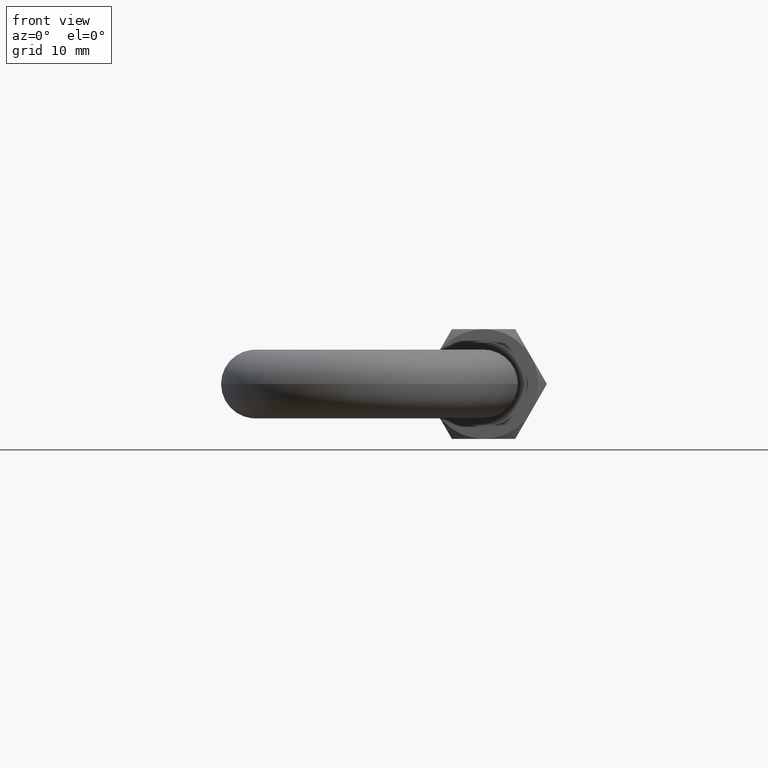
[diagram: clean part render]
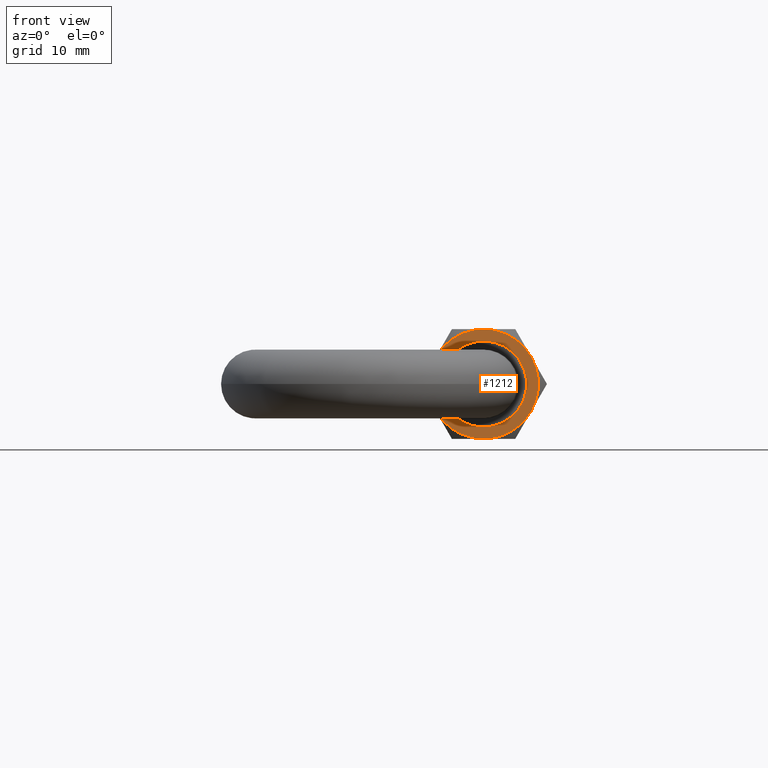
[diagram: same view with one face highlighted and labeled with its STEP entity id]
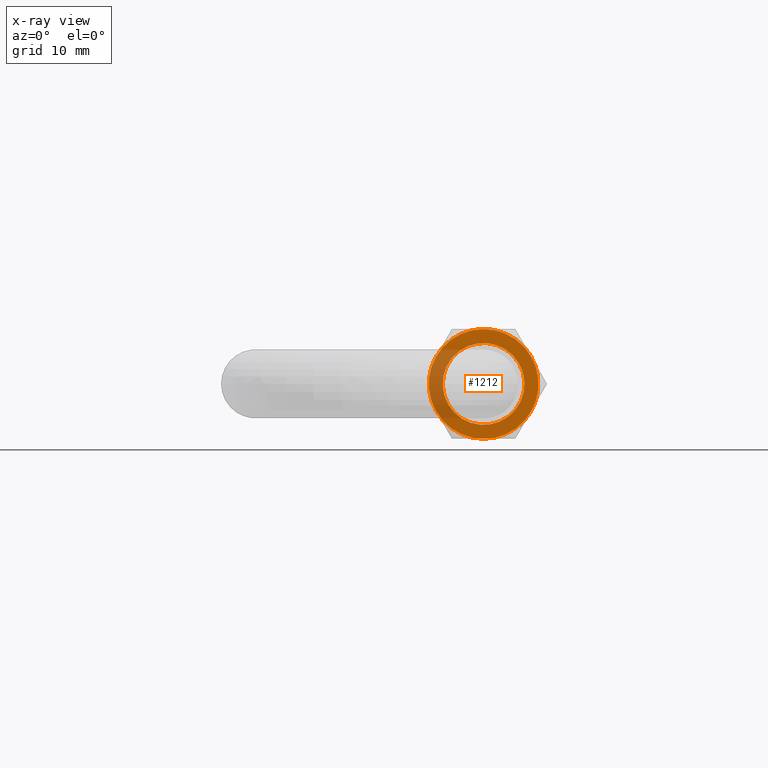
[diagram: x-ray of the same camera — body ghosted, the highlighted face saturated]
A machine part, front view. The second image highlights one B-rep face of the part: STEP entity #1212.
The next image is the same camera in x-ray: the body ghosted, the highlighted face saturated — about 26% of this face is hidden behind the body in this view.
In plain terms, the highlighted planar face has unit normal (0, 1, 0).
Its self-contained STEP definition (entity closure, byte-faithful):
#5 = CARTESIAN_POINT ( 'NONE',  ( 0.0000000000000000000, -12.00000000000000000, 6.375000000000000000 ) ) ;
#23 = DIRECTION ( 'NONE',  ( 0.0000000000000000000, 0.0000000000000000000, 1.000000000000000000 ) ) ;
#41 = CIRCLE ( 'NONE', #1018, 6.375000000000000000 ) ;
#47 = CARTESIAN_POINT ( 'NONE',  ( 0.0000000000000000000, -12.00000000000000000, -4.749999999999997300 ) ) ;
#53 = DIRECTION ( 'NONE',  ( 0.0000000000000000000, 1.000000000000000000, 0.0000000000000000000 ) ) ;
#73 = EDGE_LOOP ( 'NONE', ( #1292, #1361 ) ) ;
#106 = CARTESIAN_POINT ( 'NONE',  ( 0.0000000000000000000, -12.00000000000000000, 0.0000000000000000000 ) ) ;
#158 = CIRCLE ( 'NONE', #1933, 4.749999999999997300 ) ;
#161 = AXIS2_PLACEMENT_3D ( 'NONE', #1298, #1756, #516 ) ;
#178 = CIRCLE ( 'NONE', #342, 4.749999999999997300 ) ;
#188 = AXIS2_PLACEMENT_3D ( 'NONE', #1133, #53, #1140 ) ;
#191 = EDGE_CURVE ( 'NONE', #1755, #281, #341, .T. ) ;
#223 = CARTESIAN_POINT ( 'NONE',  ( 0.0000000000000000000, -12.00000000000000000, 0.0000000000000000000 ) ) ;
#281 = VERTEX_POINT ( 'NONE', #5 ) ;
#308 = ORIENTED_EDGE ( 'NONE', *, *, #962, .T. ) ;
#322 = DIRECTION ( 'NONE',  ( 8.881784197001252300E-016, 0.0000000000000000000, 1.000000000000000000 ) ) ;
#325 = VERTEX_POINT ( 'NONE', #1091 ) ;
#341 = CIRCLE ( 'NONE', #1088, 6.375000000000000000 ) ;
#342 = AXIS2_PLACEMENT_3D ( 'NONE', #943, #476, #23 ) ;
#360 = CIRCLE ( 'NONE', #1888, 6.375000000000000000 ) ;
#385 = DIRECTION ( 'NONE',  ( 0.0000000000000000000, 0.0000000000000000000, 1.000000000000000000 ) ) ;
#467 = CARTESIAN_POINT ( 'NONE',  ( 0.0000000000000000000, -12.00000000000000000, 0.0000000000000000000 ) ) ;
#476 = DIRECTION ( 'NONE',  ( 0.0000000000000000000, 1.000000000000000000, 0.0000000000000000000 ) ) ;
#490 = VERTEX_POINT ( 'NONE', #1299 ) ;
#516 = DIRECTION ( 'NONE',  ( 0.0000000000000000000, 0.0000000000000000000, -1.000000000000000000 ) ) ;
#518 = DIRECTION ( 'NONE',  ( 1.776356839400250500E-015, 0.0000000000000000000, 1.000000000000000000 ) ) ;
#646 = ORIENTED_EDGE ( 'NONE', *, *, #920, .T. ) ;
#649 = CARTESIAN_POINT ( 'NONE',  ( -5.520911949125795600, -12.00000000000000000, 3.187500000000000400 ) ) ;
#650 = DIRECTION ( 'NONE',  ( -0.0000000000000000000, -1.000000000000000000, -0.0000000000000000000 ) ) ;
#651 = ORIENTED_EDGE ( 'NONE', *, *, #191, .T. ) ;
#652 = PLANE ( 'NONE',  #188 ) ;
#737 = CIRCLE ( 'NONE', #984, 6.375000000000000000 ) ;
#744 = DIRECTION ( 'NONE',  ( 0.0000000000000000000, 0.0000000000000000000, 1.000000000000000000 ) ) ;
#747 = CARTESIAN_POINT ( 'NONE',  ( 5.520911949125796500, -12.00000000000000000, 3.187499999999998200 ) ) ;
#783 = EDGE_CURVE ( 'NONE', #1969, #490, #158, .T. ) ;
#788 = EDGE_LOOP ( 'NONE', ( #651, #308, #646, #1799, #843, #1372 ) ) ;
#791 = CARTESIAN_POINT ( 'NONE',  ( 0.0000000000000000000, -12.00000000000000000, 0.0000000000000000000 ) ) ;
#843 = ORIENTED_EDGE ( 'NONE', *, *, #1137, .T. ) ;
#855 = CIRCLE ( 'NONE', #910, 6.375000000000000000 ) ;
#888 = DIRECTION ( 'NONE',  ( -0.0000000000000000000, -1.000000000000000000, -0.0000000000000000000 ) ) ;
#910 = AXIS2_PLACEMENT_3D ( 'NONE', #1041, #888, #1530 ) ;
#920 = EDGE_CURVE ( 'NONE', #1276, #1319, #855, .T. ) ;
#943 = CARTESIAN_POINT ( 'NONE',  ( 0.0000000000000000000, -12.00000000000000000, 0.0000000000000000000 ) ) ;
#958 = CARTESIAN_POINT ( 'NONE',  ( 5.520911949125794700, -12.00000000000000000, -3.187500000000001300 ) ) ;
#962 = EDGE_CURVE ( 'NONE', #281, #1276, #41, .T. ) ;
#984 = AXIS2_PLACEMENT_3D ( 'NONE', #791, #650, #322 ) ;
#1000 = CIRCLE ( 'NONE', #161, 6.375000000000000000 ) ;
#1018 = AXIS2_PLACEMENT_3D ( 'NONE', #106, #1688, #744 ) ;
#1037 = EDGE_CURVE ( 'NONE', #1319, #325, #360, .T. ) ;
#1041 = CARTESIAN_POINT ( 'NONE',  ( 0.0000000000000000000, -12.00000000000000000, 0.0000000000000000000 ) ) ;
#1063 = FACE_BOUND ( 'NONE', #73, .T. ) ;
#1072 = DIRECTION ( 'NONE',  ( -0.0000000000000000000, -1.000000000000000000, -0.0000000000000000000 ) ) ;
#1088 = AXIS2_PLACEMENT_3D ( 'NONE', #1678, #1072, #1516 ) ;
#1091 = CARTESIAN_POINT ( 'NONE',  ( -7.511572993685798100E-016, -12.00000000000000000, -6.375000000000000000 ) ) ;
#1133 = CARTESIAN_POINT ( 'NONE',  ( 0.0000000000000000000, -12.00000000000000000, 0.0000000000000000000 ) ) ;
#1137 = EDGE_CURVE ( 'NONE', #325, #1850, #1000, .T. ) ;
#1140 = DIRECTION ( 'NONE',  ( 0.0000000000000000000, -0.0000000000000000000, 1.000000000000000000 ) ) ;
#1169 = CARTESIAN_POINT ( 'NONE',  ( -5.520911949125795600, -12.00000000000000000, -3.187500000000000400 ) ) ;
#1212 = ADVANCED_FACE ( 'NONE', ( #1063, #1598 ), #652, .F. ) ;
#1276 = VERTEX_POINT ( 'NONE', #649 ) ;
#1292 = ORIENTED_EDGE ( 'NONE', *, *, #783, .T. ) ;
#1298 = CARTESIAN_POINT ( 'NONE',  ( 0.0000000000000000000, -12.00000000000000000, 0.0000000000000000000 ) ) ;
#1299 = CARTESIAN_POINT ( 'NONE',  ( 5.817072295949924500E-016, -12.00000000000000000, 4.749999999999997300 ) ) ;
#1313 = DIRECTION ( 'NONE',  ( 0.0000000000000000000, 1.000000000000000000, 0.0000000000000000000 ) ) ;
#1319 = VERTEX_POINT ( 'NONE', #1169 ) ;
#1361 = ORIENTED_EDGE ( 'NONE', *, *, #1847, .T. ) ;
#1372 = ORIENTED_EDGE ( 'NONE', *, *, #1811, .T. ) ;
#1451 = DIRECTION ( 'NONE',  ( -0.0000000000000000000, -1.000000000000000000, -0.0000000000000000000 ) ) ;
#1516 = DIRECTION ( 'NONE',  ( -8.881784197001252300E-016, 0.0000000000000000000, 1.000000000000000000 ) ) ;
#1530 = DIRECTION ( 'NONE',  ( 0.0000000000000000000, 0.0000000000000000000, 1.000000000000000000 ) ) ;
#1598 = FACE_OUTER_BOUND ( 'NONE', #788, .T. ) ;
#1678 = CARTESIAN_POINT ( 'NONE',  ( 0.0000000000000000000, -12.00000000000000000, 0.0000000000000000000 ) ) ;
#1688 = DIRECTION ( 'NONE',  ( -0.0000000000000000000, -1.000000000000000000, -0.0000000000000000000 ) ) ;
#1755 = VERTEX_POINT ( 'NONE', #747 ) ;
#1756 = DIRECTION ( 'NONE',  ( 0.0000000000000000000, -1.000000000000000000, 0.0000000000000000000 ) ) ;
#1799 = ORIENTED_EDGE ( 'NONE', *, *, #1037, .T. ) ;
#1811 = EDGE_CURVE ( 'NONE', #1850, #1755, #737, .T. ) ;
#1847 = EDGE_CURVE ( 'NONE', #490, #1969, #178, .T. ) ;
#1850 = VERTEX_POINT ( 'NONE', #958 ) ;
#1888 = AXIS2_PLACEMENT_3D ( 'NONE', #467, #1451, #518 ) ;
#1933 = AXIS2_PLACEMENT_3D ( 'NONE', #223, #1313, #385 ) ;
#1969 = VERTEX_POINT ( 'NONE', #47 ) ;